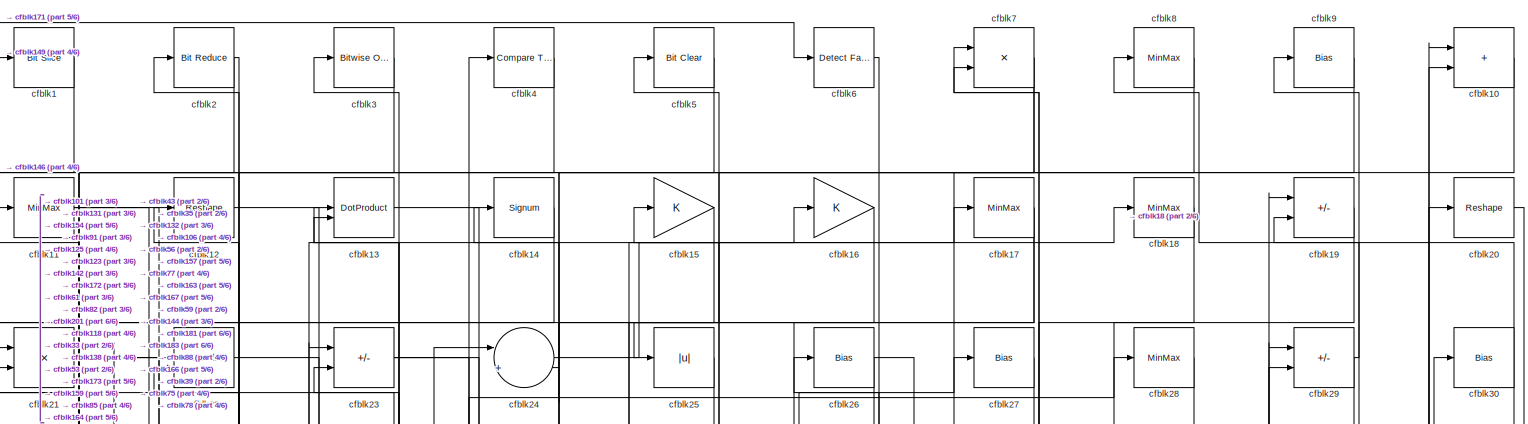
[diagram: root canvas - part 1/6, full width, top band]
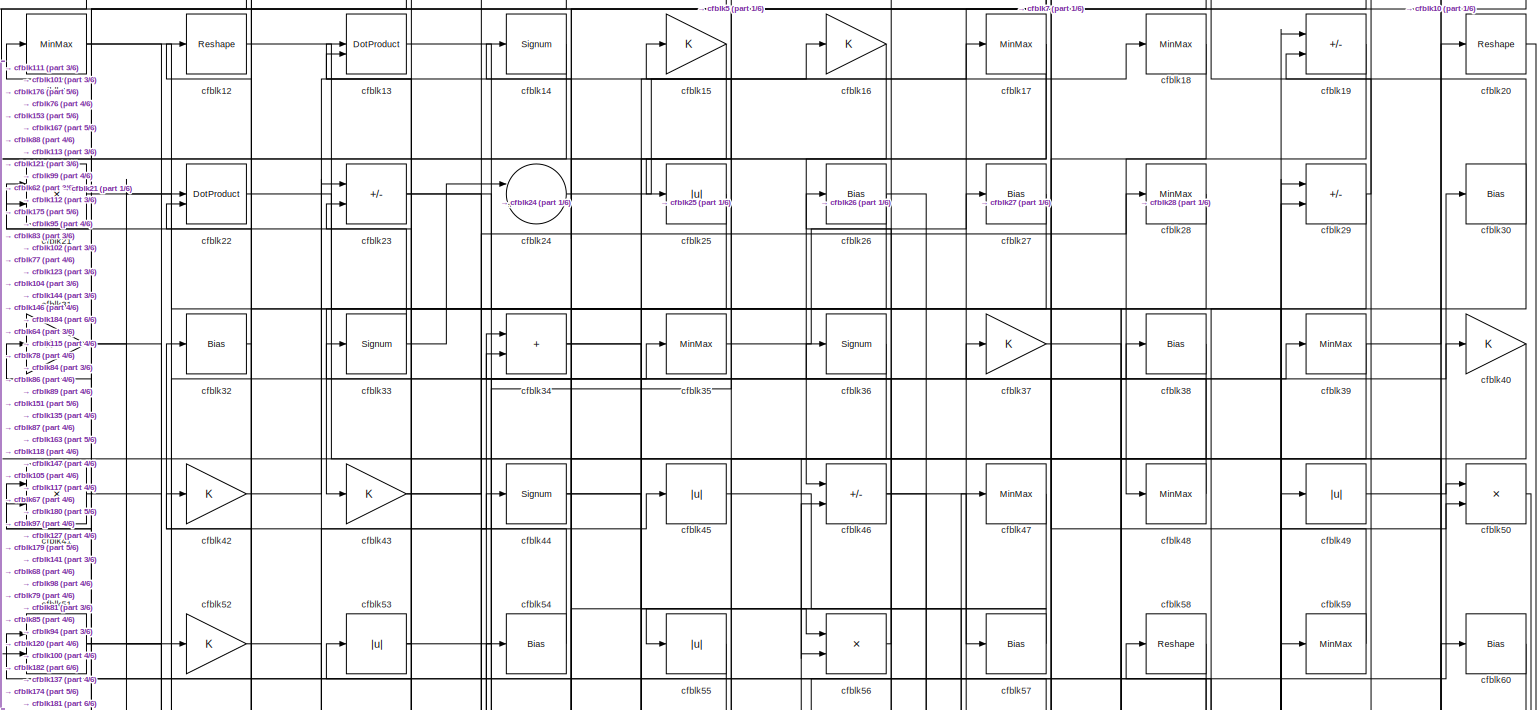
[diagram: root canvas - part 2/6, full width, top band]
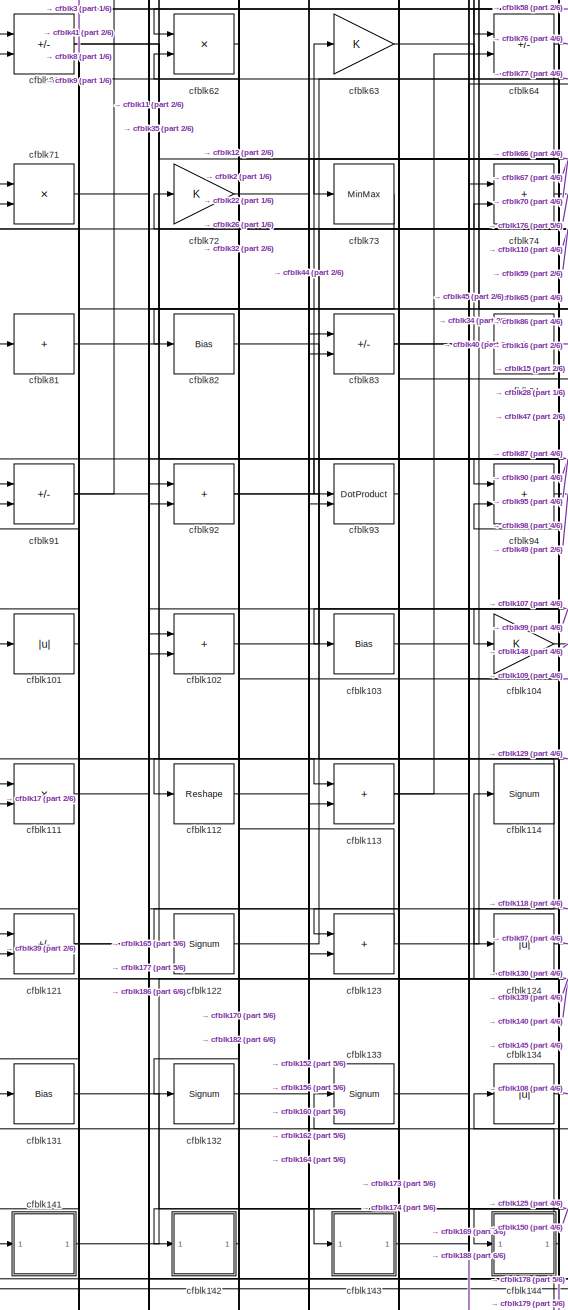
[diagram: root canvas - part 3/6, middle left region]
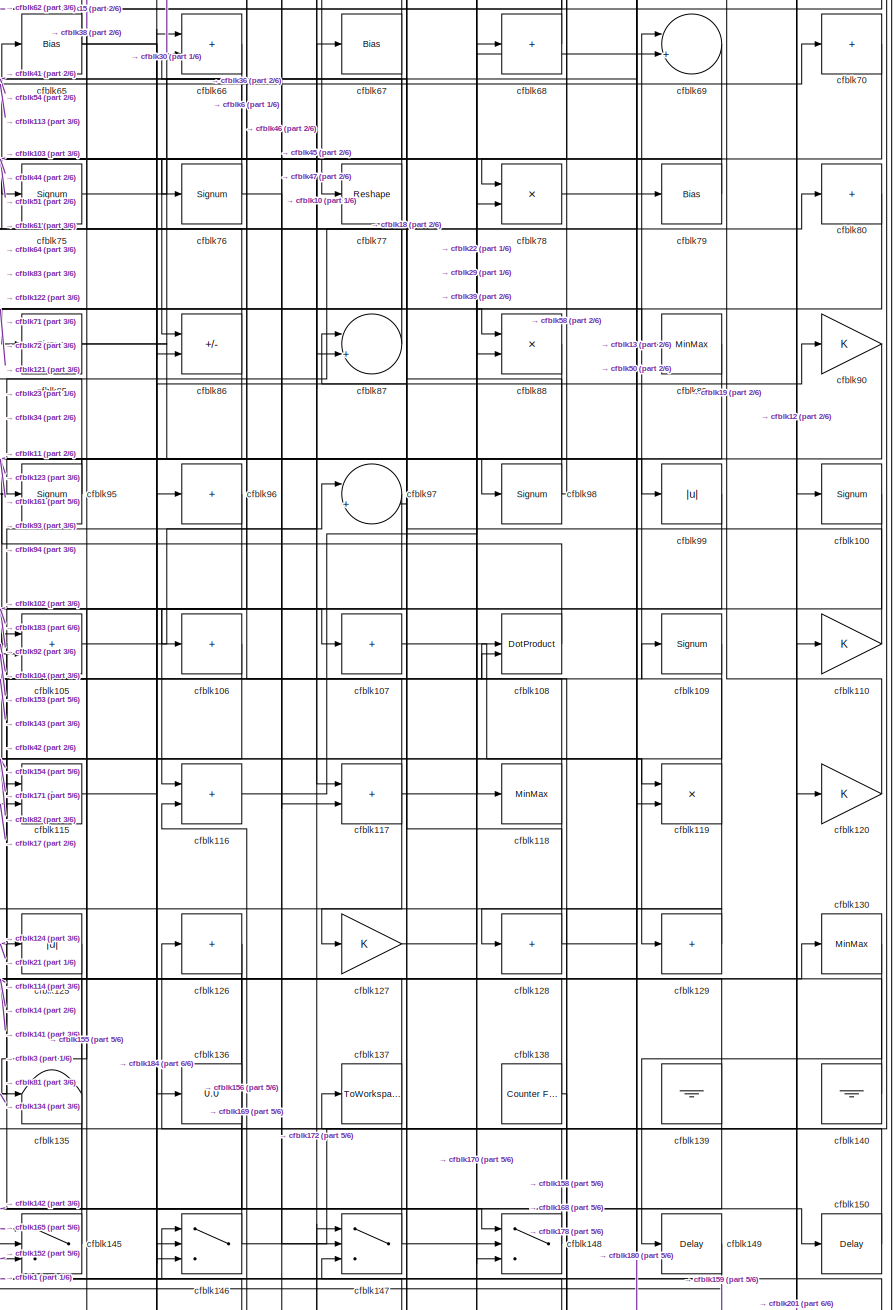
[diagram: root canvas - part 4/6, middle right region]
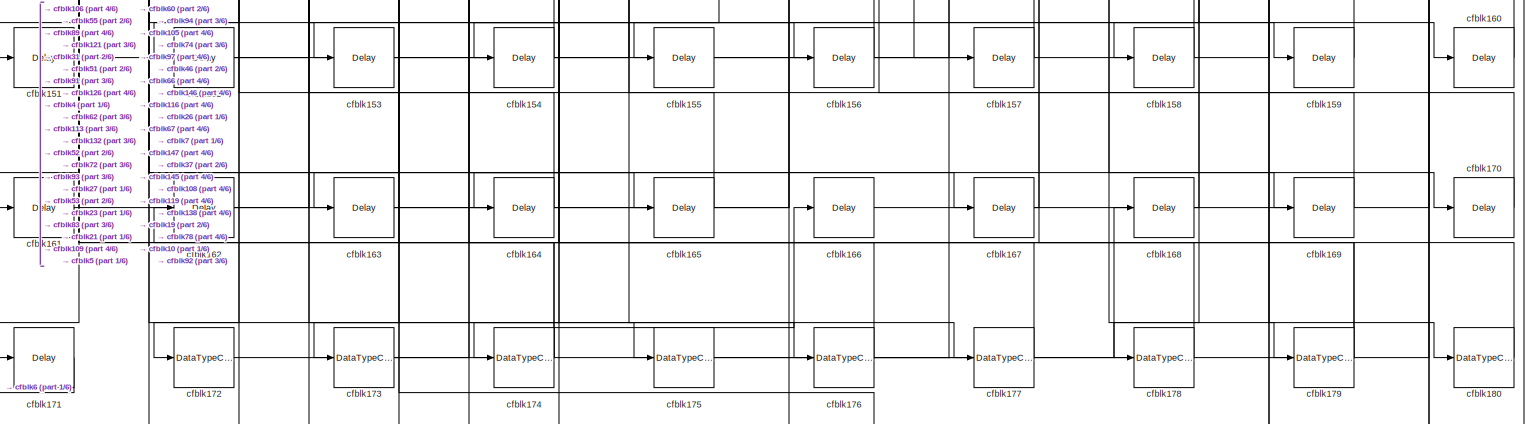
[diagram: root canvas - part 5/6, full width, bottom band]
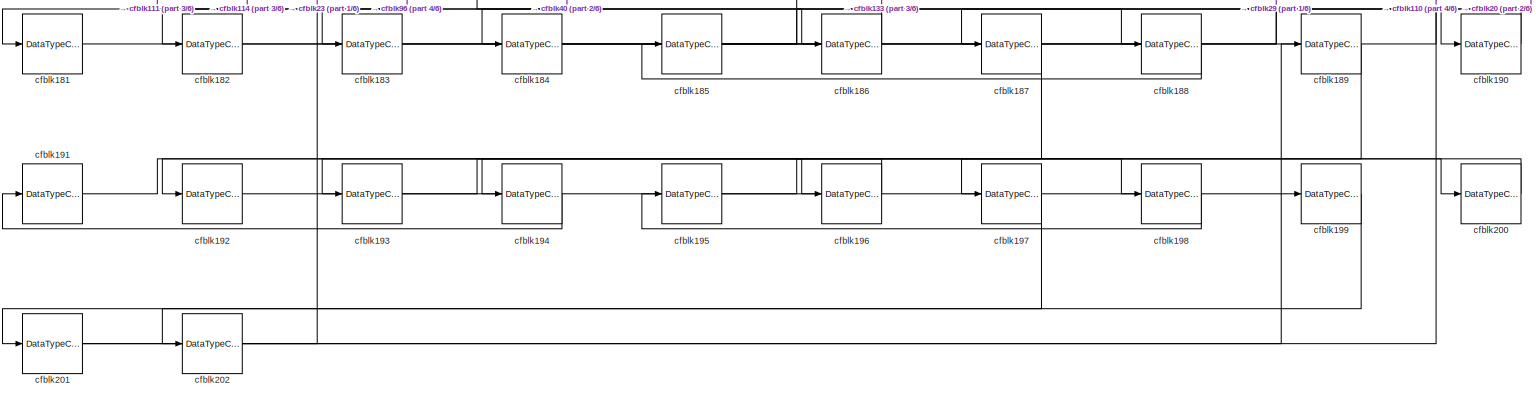
[diagram: root canvas - part 6/6, full width, bottom band]
MODEL slx_ca3c9b37318f
KIND model
CONFIG AbsTol = auto
CONFIG EnableMultiTasking = off
CONFIG FixedStep = auto
CONFIG MaxStep = auto
CONFIG MinStep = auto
CONFIG RelTol = 1e-3
CONFIG SampleTimeConstraint = Unconstrained
CONFIG SolverName = VariableStepAuto
CONFIG StartTime = 0.0
CONFIG StopTime = 10.0
BLOCK [Reference] cfblk1  REF=hdlsllib/Logic and Bit
Operations/Bit Slice
  SourceBlock = hdlsllib/Logic and Bit\nOperations/Bit Slice
  SourceType = Bit Slice
BLOCK [Sum] cfblk10
  IconShape = rectangular
BLOCK [Signum] cfblk100
BLOCK [Abs] cfblk101
  SaturateOnIntegerOverflow = off
BLOCK [Sum] cfblk102
  IconShape = rectangular
BLOCK [Bias] cfblk103
  Bias = 0.0
  SaturateOnIntegerOverflow = off
BLOCK [Gain] cfblk104
BLOCK [Sum] cfblk105
  IconShape = rectangular
BLOCK [Sum] cfblk106
  IconShape = rectangular
  Inputs = +
BLOCK [Sum] cfblk107
  IconShape = rectangular
  Inputs = +
BLOCK [DotProduct] cfblk108
  OutDataTypeStr = Inherit: Inherit via internal rule
BLOCK [Signum] cfblk109
BLOCK [MinMax] cfblk11
BLOCK [Gain] cfblk110
BLOCK [Product] cfblk111
  Inputs = */
  RndMeth = Zero
  SaturateOnIntegerOverflow = on
BLOCK [Reshape] cfblk112
BLOCK [Sum] cfblk113
  IconShape = rectangular
BLOCK [Signum] cfblk114
BLOCK [Sum] cfblk115
  IconShape = rectangular
BLOCK [Sum] cfblk116
  IconShape = rectangular
BLOCK [Sum] cfblk117
  IconShape = rectangular
BLOCK [MinMax] cfblk118
BLOCK [Product] cfblk119
  Inputs = */
  RndMeth = Zero
  SaturateOnIntegerOverflow = on
BLOCK [Reshape] cfblk12
BLOCK [Gain] cfblk120
BLOCK [Sum] cfblk121
  IconShape = rectangular
  Inputs = +-
BLOCK [Signum] cfblk122
BLOCK [Sum] cfblk123
  IconShape = rectangular
BLOCK [Abs] cfblk124
  SaturateOnIntegerOverflow = off
BLOCK [Abs] cfblk125
  SaturateOnIntegerOverflow = off
BLOCK [Sum] cfblk126
  IconShape = rectangular
  Inputs = +
BLOCK [Gain] cfblk127
BLOCK [Sum] cfblk128
  IconShape = rectangular
  Inputs = +
BLOCK [Sum] cfblk129
  IconShape = rectangular
  Inputs = +
BLOCK [DotProduct] cfblk13
  OutDataTypeStr = Inherit: Inherit via internal rule
BLOCK [MinMax] cfblk130
BLOCK [Bias] cfblk131
  Bias = 0.0
  SaturateOnIntegerOverflow = off
BLOCK [Signum] cfblk132
BLOCK [Signum] cfblk133
BLOCK [Abs] cfblk134
  SaturateOnIntegerOverflow = off
BLOCK [Terminator] cfblk135
BLOCK [Display] cfblk136
  Decimation = 1
BLOCK [ToWorkspace] cfblk137
  MaxDataPoints = inf
  SampleTime = -1
  SaveFormat = Timeseries
  VariableName = simout
BLOCK [Reference] cfblk138  REF=hdlsllib/Sources/Counter
Free-Running
  SourceBlock = hdlsllib/Sources/Counter\nFree-Running
  SourceType = Counter Free-Running
BLOCK [Ground] cfblk139
BLOCK [Signum] cfblk14
BLOCK [Ground] cfblk140
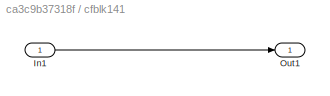
BLOCK [SubSystem] cfblk141
  LibrarySourceBlock = hdlsllib/Ports &\nSubsystems/Subsystem
BLOCK [Inport] cfblk141/In1
BLOCK [Outport] cfblk141/Out1
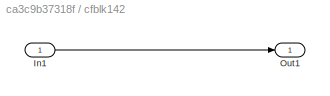
BLOCK [SubSystem] cfblk142
  LibrarySourceBlock = hdlsllib/Ports &\nSubsystems/Subsystem
BLOCK [Inport] cfblk142/In1
BLOCK [Outport] cfblk142/Out1
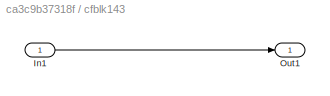
BLOCK [SubSystem] cfblk143
  LibrarySourceBlock = hdlsllib/Ports &\nSubsystems/Subsystem
BLOCK [Inport] cfblk143/In1
BLOCK [Outport] cfblk143/Out1
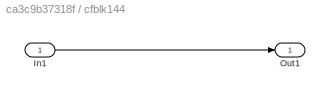
BLOCK [SubSystem] cfblk144
  LibrarySourceBlock = hdlsllib/Ports &\nSubsystems/Subsystem
BLOCK [Inport] cfblk144/In1
BLOCK [Outport] cfblk144/Out1
BLOCK [Switch] cfblk145
  InputSameDT = off
  SaturateOnIntegerOverflow = off
BLOCK [Switch] cfblk146
  InputSameDT = off
  SaturateOnIntegerOverflow = off
BLOCK [Switch] cfblk147
  InputSameDT = off
  SaturateOnIntegerOverflow = off
BLOCK [Switch] cfblk148
  InputSameDT = off
  SaturateOnIntegerOverflow = off
BLOCK [Delay] cfblk149
  InputPortMap = u0
  SampleTime = 1
BLOCK [Gain] cfblk15
BLOCK [Delay] cfblk150
  InputPortMap = u0
  SampleTime = 1
BLOCK [Delay] cfblk151
  InputPortMap = u0
  SampleTime = 1
BLOCK [Delay] cfblk152
  InputPortMap = u0
  SampleTime = 1
BLOCK [Delay] cfblk153
  InputPortMap = u0
  SampleTime = 1
BLOCK [Delay] cfblk154
  InputPortMap = u0
  SampleTime = 1
BLOCK [Delay] cfblk155
  InputPortMap = u0
  SampleTime = 1
BLOCK [Delay] cfblk156
  InputPortMap = u0
  SampleTime = 1
BLOCK [Delay] cfblk157
  InputPortMap = u0
  SampleTime = 1
BLOCK [Delay] cfblk158
  InputPortMap = u0
  SampleTime = 1
BLOCK [Delay] cfblk159
  InputPortMap = u0
  SampleTime = 1
BLOCK [Gain] cfblk16
BLOCK [Delay] cfblk160
  InputPortMap = u0
  SampleTime = 1
BLOCK [Delay] cfblk161
  InputPortMap = u0
  SampleTime = 1
BLOCK [Delay] cfblk162
  InputPortMap = u0
  SampleTime = 1
BLOCK [Delay] cfblk163
  InputPortMap = u0
  SampleTime = 1
BLOCK [Delay] cfblk164
  InputPortMap = u0
  SampleTime = 1
BLOCK [Delay] cfblk165
  InputPortMap = u0
  SampleTime = 1
BLOCK [Delay] cfblk166
  InputPortMap = u0
  SampleTime = 1
BLOCK [Delay] cfblk167
  InputPortMap = u0
  SampleTime = 1
BLOCK [Delay] cfblk168
  InputPortMap = u0
  SampleTime = 1
BLOCK [Delay] cfblk169
  InputPortMap = u0
  SampleTime = 1
BLOCK [MinMax] cfblk17
BLOCK [Delay] cfblk170
  InputPortMap = u0
  SampleTime = 1
BLOCK [Delay] cfblk171
  InputPortMap = u0
  SampleTime = 1
BLOCK [DataTypeConversion] cfblk172
  OutDataTypeStr = uint8
  RndMeth = Floor
  SaturateOnIntegerOverflow = off
BLOCK [DataTypeConversion] cfblk173
  OutDataTypeStr = uint8
  RndMeth = Floor
  SaturateOnIntegerOverflow = off
BLOCK [DataTypeConversion] cfblk174
  RndMeth = Floor
  SaturateOnIntegerOverflow = off
BLOCK [DataTypeConversion] cfblk175
  OutDataTypeStr = uint8
  RndMeth = Floor
  SaturateOnIntegerOverflow = off
BLOCK [DataTypeConversion] cfblk176
  RndMeth = Floor
  SaturateOnIntegerOverflow = off
BLOCK [DataTypeConversion] cfblk177
  OutDataTypeStr = uint8
  RndMeth = Floor
  SaturateOnIntegerOverflow = off
BLOCK [DataTypeConversion] cfblk178
  OutDataTypeStr = uint8
  RndMeth = Floor
  SaturateOnIntegerOverflow = off
BLOCK [DataTypeConversion] cfblk179
  RndMeth = Floor
  SaturateOnIntegerOverflow = off
BLOCK [MinMax] cfblk18
BLOCK [DataTypeConversion] cfblk180
  OutDataTypeStr = uint8
  RndMeth = Floor
  SaturateOnIntegerOverflow = off
BLOCK [DataTypeConversion] cfblk181
  OutDataTypeStr = uint8
  RndMeth = Floor
  SaturateOnIntegerOverflow = off
BLOCK [DataTypeConversion] cfblk182
  OutDataTypeStr = uint8
  RndMeth = Floor
  SaturateOnIntegerOverflow = off
BLOCK [DataTypeConversion] cfblk183
  OutDataTypeStr = uint8
  RndMeth = Floor
  SaturateOnIntegerOverflow = off
BLOCK [DataTypeConversion] cfblk184
  OutDataTypeStr = uint8
  RndMeth = Floor
  SaturateOnIntegerOverflow = off
BLOCK [DataTypeConversion] cfblk185
  RndMeth = Floor
  SaturateOnIntegerOverflow = off
BLOCK [DataTypeConversion] cfblk186
  OutDataTypeStr = uint8
  RndMeth = Floor
  SaturateOnIntegerOverflow = off
BLOCK [DataTypeConversion] cfblk187
  RndMeth = Floor
  SaturateOnIntegerOverflow = off
BLOCK [DataTypeConversion] cfblk188
  OutDataTypeStr = uint8
  RndMeth = Floor
  SaturateOnIntegerOverflow = off
BLOCK [DataTypeConversion] cfblk189
  RndMeth = Floor
  SaturateOnIntegerOverflow = off
BLOCK [Sum] cfblk19
  IconShape = rectangular
  Inputs = +-
BLOCK [DataTypeConversion] cfblk190
  OutDataTypeStr = uint8
  RndMeth = Floor
  SaturateOnIntegerOverflow = off
BLOCK [DataTypeConversion] cfblk191
  RndMeth = Floor
  SaturateOnIntegerOverflow = off
BLOCK [DataTypeConversion] cfblk192
  OutDataTypeStr = uint8
  RndMeth = Floor
  SaturateOnIntegerOverflow = off
BLOCK [DataTypeConversion] cfblk193
  RndMeth = Floor
  SaturateOnIntegerOverflow = off
BLOCK [DataTypeConversion] cfblk194
  OutDataTypeStr = uint8
  RndMeth = Floor
  SaturateOnIntegerOverflow = off
BLOCK [DataTypeConversion] cfblk195
  RndMeth = Floor
  SaturateOnIntegerOverflow = off
BLOCK [DataTypeConversion] cfblk196
  OutDataTypeStr = uint8
  RndMeth = Floor
  SaturateOnIntegerOverflow = off
BLOCK [DataTypeConversion] cfblk197
  RndMeth = Floor
  SaturateOnIntegerOverflow = off
BLOCK [DataTypeConversion] cfblk198
  OutDataTypeStr = uint8
  RndMeth = Floor
  SaturateOnIntegerOverflow = off
BLOCK [DataTypeConversion] cfblk199
  RndMeth = Floor
  SaturateOnIntegerOverflow = off
BLOCK [Reference] cfblk2  REF=hdlsllib/Logic and Bit
Operations/Bit Reduce
  SourceBlock = hdlsllib/Logic and Bit\nOperations/Bit Reduce
  SourceType = Bit Reduce
BLOCK [Reshape] cfblk20
BLOCK [DataTypeConversion] cfblk200
  OutDataTypeStr = uint8
  RndMeth = Floor
  SaturateOnIntegerOverflow = off
BLOCK [DataTypeConversion] cfblk201
  RndMeth = Floor
  SaturateOnIntegerOverflow = off
BLOCK [DataTypeConversion] cfblk202
  OutDataTypeStr = uint8
  RndMeth = Floor
  SaturateOnIntegerOverflow = off
BLOCK [Product] cfblk21
  Inputs = */
  RndMeth = Zero
  SaturateOnIntegerOverflow = on
BLOCK [DotProduct] cfblk22
  OutDataTypeStr = Inherit: Inherit via internal rule
BLOCK [Sum] cfblk23
  IconShape = rectangular
  Inputs = +-
BLOCK [Sum] cfblk24
  Inputs = |++
BLOCK [Abs] cfblk25
  SaturateOnIntegerOverflow = off
BLOCK [Bias] cfblk26
  Bias = 0.0
  SaturateOnIntegerOverflow = off
BLOCK [Bias] cfblk27
  Bias = 0.0
  SaturateOnIntegerOverflow = off
BLOCK [MinMax] cfblk28
BLOCK [Sum] cfblk29
  IconShape = rectangular
  Inputs = +-
BLOCK [Reference] cfblk3  REF=simulink/Logic and Bit
Operations/Bitwise
Operator
  LibrarySourceBlock = hdlsllib/Logic and Bit\nOperations/Bitwise\nOperator
  SourceBlock = simulink/Logic and Bit\nOperations/Bitwise\nOperator
  SourceType = Bitwise Operator
BLOCK [Bias] cfblk30
  Bias = 0.0
  SaturateOnIntegerOverflow = off
BLOCK [Gain] cfblk31
BLOCK [Bias] cfblk32
  Bias = 0.0
  SaturateOnIntegerOverflow = off
BLOCK [Signum] cfblk33
BLOCK [Sum] cfblk34
  IconShape = rectangular
BLOCK [MinMax] cfblk35
BLOCK [Signum] cfblk36
BLOCK [Gain] cfblk37
BLOCK [Bias] cfblk38
  Bias = 0.0
  SaturateOnIntegerOverflow = off
BLOCK [MinMax] cfblk39
BLOCK [Reference] cfblk4  REF=hdlsllib/Logic and Bit
Operations/Compare
To Constant
  SourceBlock = hdlsllib/Logic and Bit\nOperations/Compare\nTo Constant
  SourceType = Compare To Constant
BLOCK [Gain] cfblk40
BLOCK [Product] cfblk41
  Inputs = */
  RndMeth = Zero
  SaturateOnIntegerOverflow = on
BLOCK [Gain] cfblk42
BLOCK [Gain] cfblk43
BLOCK [Signum] cfblk44
BLOCK [Abs] cfblk45
  SaturateOnIntegerOverflow = off
BLOCK [Sum] cfblk46
  IconShape = rectangular
  Inputs = +-
BLOCK [MinMax] cfblk47
BLOCK [MinMax] cfblk48
BLOCK [Abs] cfblk49
  SaturateOnIntegerOverflow = off
BLOCK [Reference] cfblk5  REF=simulink/Logic and Bit
Operations/Bit Clear
  LibrarySourceBlock = hdlsllib/Logic and Bit\nOperations/Bit Clear
  SourceBlock = simulink/Logic and Bit\nOperations/Bit Clear
  SourceType = Bit Clear
BLOCK [Product] cfblk50
  Inputs = */
  RndMeth = Zero
  SaturateOnIntegerOverflow = on
BLOCK [Sum] cfblk51
  IconShape = rectangular
BLOCK [Gain] cfblk52
BLOCK [Abs] cfblk53
  SaturateOnIntegerOverflow = off
BLOCK [Bias] cfblk54
  Bias = 0.0
  SaturateOnIntegerOverflow = off
BLOCK [Abs] cfblk55
  SaturateOnIntegerOverflow = off
BLOCK [Product] cfblk56
  Inputs = */
  RndMeth = Zero
  SaturateOnIntegerOverflow = on
BLOCK [Bias] cfblk57
  Bias = 0.0
  SaturateOnIntegerOverflow = off
BLOCK [Reshape] cfblk58
BLOCK [MinMax] cfblk59
BLOCK [Reference] cfblk6  REF=hdlsllib/Logic and Bit
Operations/Detect Fall
Nonpositive
  SourceBlock = hdlsllib/Logic and Bit\nOperations/Detect Fall\nNonpositive
  SourceType = Detect Fall Nonpositive
BLOCK [Bias] cfblk60
  Bias = 0.0
  SaturateOnIntegerOverflow = off
BLOCK [Sum] cfblk61
  IconShape = rectangular
  Inputs = +-
BLOCK [Product] cfblk62
  Inputs = */
  RndMeth = Zero
  SaturateOnIntegerOverflow = on
BLOCK [Gain] cfblk63
BLOCK [Sum] cfblk64
  IconShape = rectangular
  Inputs = +-
BLOCK [Bias] cfblk65
  Bias = 0.0
  SaturateOnIntegerOverflow = off
BLOCK [Sum] cfblk66
  IconShape = rectangular
BLOCK [Bias] cfblk67
  Bias = 0.0
  SaturateOnIntegerOverflow = off
BLOCK [Sum] cfblk68
  IconShape = rectangular
  Inputs = +
BLOCK [Sum] cfblk69
  Inputs = |++
BLOCK [Product] cfblk7
  Inputs = */
  RndMeth = Zero
  SaturateOnIntegerOverflow = on
BLOCK [Sum] cfblk70
  IconShape = rectangular
  Inputs = +
BLOCK [Product] cfblk71
  Inputs = */
  RndMeth = Zero
  SaturateOnIntegerOverflow = on
BLOCK [Gain] cfblk72
BLOCK [MinMax] cfblk73
BLOCK [Sum] cfblk74
  IconShape = rectangular
BLOCK [Signum] cfblk75
BLOCK [Signum] cfblk76
BLOCK [Reshape] cfblk77
BLOCK [Product] cfblk78
  Inputs = */
  RndMeth = Zero
  SaturateOnIntegerOverflow = on
BLOCK [Bias] cfblk79
  Bias = 0.0
  SaturateOnIntegerOverflow = off
BLOCK [MinMax] cfblk8
BLOCK [Sum] cfblk80
  IconShape = rectangular
  Inputs = +
BLOCK [Sum] cfblk81
  IconShape = rectangular
  Inputs = +
BLOCK [Bias] cfblk82
  Bias = 0.0
  SaturateOnIntegerOverflow = off
BLOCK [Sum] cfblk83
  IconShape = rectangular
  Inputs = +-
BLOCK [Sum] cfblk84
  IconShape = rectangular
  Inputs = +
BLOCK [Signum] cfblk85
BLOCK [Sum] cfblk86
  IconShape = rectangular
  Inputs = +-
BLOCK [Sum] cfblk87
  Inputs = |++
BLOCK [Product] cfblk88
  Inputs = */
  RndMeth = Zero
  SaturateOnIntegerOverflow = on
BLOCK [MinMax] cfblk89
BLOCK [Bias] cfblk9
  Bias = 0.0
  SaturateOnIntegerOverflow = off
BLOCK [Gain] cfblk90
BLOCK [Sum] cfblk91
  IconShape = rectangular
  Inputs = +-
BLOCK [Sum] cfblk92
  IconShape = rectangular
BLOCK [DotProduct] cfblk93
  OutDataTypeStr = Inherit: Inherit via internal rule
BLOCK [Sum] cfblk94
  IconShape = rectangular
BLOCK [Signum] cfblk95
BLOCK [Sum] cfblk96
  IconShape = rectangular
  Inputs = +
BLOCK [Sum] cfblk97
  Inputs = |++
BLOCK [Signum] cfblk98
BLOCK [Abs] cfblk99
  SaturateOnIntegerOverflow = off
LINE cfblk100:1 -> cfblk116:1
LINE cfblk101:1 -> cfblk41:2
LINE cfblk102:1 -> cfblk34:1
LINE cfblk103:1 -> cfblk150:1
LINE cfblk104:1 -> cfblk148:1
LINE cfblk105:1 -> cfblk47:1
LINE cfblk106:1 -> cfblk171:1
LINE cfblk107:1 -> cfblk119:1
LINE cfblk108:1 -> cfblk95:1
LINE cfblk109:1 -> cfblk154:1
LINE cfblk10:1 -> cfblk77:1
LINE cfblk110:1 -> cfblk72:1
LINE cfblk111:1 -> cfblk186:1
LINE cfblk112:1 -> cfblk44:1
NET cfblk113:1 -> cfblk64:2, cfblk70:1
NET cfblk114:1 -> cfblk111:1, cfblk182:1
LINE cfblk115:1 -> cfblk90:1
LINE cfblk116:1 -> cfblk68:1
NET cfblk117:1 -> cfblk127:1, cfblk42:1, cfblk69:2
NET cfblk118:1 -> cfblk124:1, cfblk36:1
NET cfblk119:1 -> cfblk158:1, cfblk69:1
NET cfblk11:1 -> cfblk113:1, cfblk99:1
LINE cfblk120:1 -> cfblk19:2
NET cfblk121:1 -> cfblk177:1, cfblk35:1
LINE cfblk122:1 -> cfblk65:1
NET cfblk123:1 -> cfblk22:2, cfblk40:1
LINE cfblk124:1 -> cfblk97:1
LINE cfblk125:1 -> cfblk142:1
NET cfblk126:1 -> cfblk145:3, cfblk152:1
LINE cfblk127:1 -> cfblk39:1
NET cfblk128:1 -> cfblk80:1, cfblk87:1
LINE cfblk129:1 -> cfblk128:1
LINE cfblk12:1 -> cfblk100:1
LINE cfblk130:1 -> cfblk149:1
LINE cfblk131:1 -> cfblk143:1
LINE cfblk132:1 -> cfblk156:1
LINE cfblk133:1 -> cfblk188:1
LINE cfblk134:1 -> cfblk108:1
NET cfblk138:1 -> cfblk178:1, cfblk3:1
NET cfblk139:1 -> cfblk146:3, cfblk71:1
LINE cfblk13:1 -> cfblk79:1
LINE cfblk140:1 -> cfblk114:1
LINE cfblk141/In1:1 -> cfblk141/Out1:1
LINE cfblk141:1 -> cfblk130:1
LINE cfblk142/In1:1 -> cfblk142/Out1:1
LINE cfblk142:1 -> cfblk2:1
LINE cfblk143/In1:1 -> cfblk143/Out1:1
LINE cfblk143:1 -> cfblk109:1
LINE cfblk144/In1:1 -> cfblk144/Out1:1
NET cfblk144:1 -> cfblk134:1, cfblk34:2
LINE cfblk145:1 -> cfblk81:1
NET cfblk146:1 -> cfblk120:1, cfblk14:1
NET cfblk147:1 -> cfblk105:1, cfblk170:1
LINE cfblk148:1 -> cfblk126:1
LINE cfblk149:1 -> cfblk1:1
LINE cfblk14:1 -> cfblk51:2
LINE cfblk150:1 -> cfblk61:1
LINE cfblk151:1 -> cfblk19:1
LINE cfblk152:1 -> cfblk113:2
LINE cfblk153:1 -> cfblk105:2
LINE cfblk154:1 -> cfblk21:2
LINE cfblk155:1 -> cfblk147:1
LINE cfblk156:1 -> cfblk146:2
LINE cfblk157:1 -> cfblk23:2
LINE cfblk158:1 -> cfblk145:2
LINE cfblk159:1 -> cfblk147:3
LINE cfblk15:1 -> cfblk64:1
LINE cfblk160:1 -> cfblk92:1
LINE cfblk161:1 -> cfblk66:1
LINE cfblk162:1 -> cfblk93:2
LINE cfblk163:1 -> cfblk46:2
LINE cfblk164:1 -> cfblk83:1
LINE cfblk165:1 -> cfblk145:1
LINE cfblk166:1 -> cfblk10:2
LINE cfblk167:1 -> cfblk7:2
LINE cfblk168:1 -> cfblk108:2
LINE cfblk169:1 -> cfblk116:2
LINE cfblk16:1 -> cfblk46:1
LINE cfblk170:1 -> cfblk62:2
LINE cfblk171:1 -> cfblk6:1
LINE cfblk172:1 -> cfblk67:1
LINE cfblk173:1 -> cfblk4:1
NET cfblk174:1 -> cfblk166:1, cfblk53:1, cfblk91:2
LINE cfblk175:1 -> cfblk60:1
NET cfblk176:1 -> cfblk168:1, cfblk31:1
LINE cfblk177:1 -> cfblk74:1
LINE cfblk178:1 -> cfblk74:2
NET cfblk179:1 -> cfblk162:1, cfblk94:2
NET cfblk17:1 -> cfblk111:2, cfblk115:2
LINE cfblk180:1 -> cfblk37:1
LINE cfblk181:1 -> cfblk29:2
LINE cfblk182:1 -> cfblk20:1
LINE cfblk183:1 -> cfblk29:1
LINE cfblk184:1 -> cfblk96:1
LINE cfblk185:1 -> cfblk190:1
LINE cfblk186:1 -> cfblk133:1
LINE cfblk187:1 -> cfblk192:1
LINE cfblk188:1 -> cfblk185:1
LINE cfblk189:1 -> cfblk194:1
LINE cfblk18:1 -> cfblk97:2
LINE cfblk190:1 -> cfblk187:1
LINE cfblk191:1 -> cfblk196:1
LINE cfblk192:1 -> cfblk189:1
LINE cfblk193:1 -> cfblk198:1
LINE cfblk194:1 -> cfblk191:1
LINE cfblk195:1 -> cfblk200:1
LINE cfblk196:1 -> cfblk193:1
LINE cfblk197:1 -> cfblk202:1
LINE cfblk198:1 -> cfblk195:1
LINE cfblk199:1 -> cfblk201:1
LINE cfblk19:1 -> cfblk48:1
LINE cfblk1:1 -> cfblk146:1
LINE cfblk200:1 -> cfblk197:1
NET cfblk201:1 -> cfblk110:1, cfblk23:1
LINE cfblk202:1 -> cfblk199:1
LINE cfblk20:1 -> cfblk181:1
LINE cfblk21:1 -> cfblk125:1
LINE cfblk22:1 -> cfblk118:1
NET cfblk23:1 -> cfblk159:1, cfblk85:1
LINE cfblk24:1 -> cfblk18:1
LINE cfblk25:1 -> cfblk43:1
NET cfblk26:1 -> cfblk132:1, cfblk157:1
LINE cfblk27:1 -> cfblk163:1
LINE cfblk28:1 -> cfblk144:1
NET cfblk29:1 -> cfblk88:2, cfblk9:1
NET cfblk2:1 -> cfblk61:2, cfblk82:1
NET cfblk30:1 -> cfblk78:1, cfblk8:1
NET cfblk31:1 -> cfblk167:1, cfblk52:1
LINE cfblk32:1 -> cfblk112:1
NET cfblk33:1 -> cfblk21:1, cfblk24:1
NET cfblk34:1 -> cfblk56:1, cfblk86:2
LINE cfblk35:1 -> cfblk27:1
LINE cfblk36:1 -> cfblk56:2
LINE cfblk37:1 -> cfblk179:1
LINE cfblk38:1 -> cfblk135:1
NET cfblk39:1 -> cfblk10:1, cfblk121:2
LINE cfblk3:1 -> cfblk101:1
LINE cfblk40:1 -> cfblk184:1
LINE cfblk41:1 -> cfblk102:1
LINE cfblk42:1 -> cfblk17:1
NET cfblk43:1 -> cfblk28:1, cfblk38:1
NET cfblk44:1 -> cfblk78:2, cfblk89:1
LINE cfblk45:1 -> cfblk117:1
NET cfblk46:1 -> cfblk147:2, cfblk57:1
LINE cfblk47:1 -> cfblk104:1
LINE cfblk48:1 -> cfblk33:1
LINE cfblk49:1 -> cfblk50:1
LINE cfblk4:1 -> cfblk172:1
LINE cfblk50:1 -> cfblk137:1
NET cfblk51:1 -> cfblk153:1, cfblk88:1
LINE cfblk52:1 -> cfblk175:1
NET cfblk53:1 -> cfblk13:1, cfblk5:1
LINE cfblk54:1 -> cfblk32:1
LINE cfblk55:1 -> cfblk151:1
LINE cfblk56:1 -> cfblk26:1
LINE cfblk57:1 -> cfblk55:1
LINE cfblk58:1 -> cfblk141:1
LINE cfblk59:1 -> cfblk7:1
LINE cfblk5:1 -> cfblk164:1
LINE cfblk60:1 -> cfblk174:1
NET cfblk61:1 -> cfblk87:2, cfblk98:1
LINE cfblk62:1 -> cfblk12:1
LINE cfblk63:1 -> cfblk84:1
NET cfblk64:1 -> cfblk73:1, cfblk76:1
NET cfblk65:1 -> cfblk136:1, cfblk148:3, cfblk62:1
LINE cfblk66:1 -> cfblk122:1
NET cfblk67:1 -> cfblk51:1, cfblk83:2
LINE cfblk68:1 -> cfblk11:1
LINE cfblk69:1 -> cfblk86:1
LINE cfblk6:1 -> cfblk106:1
LINE cfblk70:1 -> cfblk103:1
LINE cfblk71:1 -> cfblk123:2
LINE cfblk72:1 -> cfblk160:1
LINE cfblk73:1 -> cfblk92:2
LINE cfblk74:1 -> cfblk176:1
LINE cfblk75:1 -> cfblk30:1
NET cfblk76:1 -> cfblk117:2, cfblk41:1
NET cfblk77:1 -> cfblk121:1, cfblk54:1
LINE cfblk78:1 -> cfblk180:1
LINE cfblk79:1 -> cfblk75:1
NET cfblk7:1 -> cfblk24:2, cfblk25:1
LINE cfblk80:1 -> cfblk148:2
LINE cfblk81:1 -> cfblk59:1
LINE cfblk82:1 -> cfblk129:1
NET cfblk83:1 -> cfblk169:1, cfblk45:1
LINE cfblk84:1 -> cfblk16:1
NET cfblk85:1 -> cfblk119:2, cfblk50:2
NET cfblk86:1 -> cfblk123:1, cfblk71:2
LINE cfblk87:1 -> cfblk15:1
LINE cfblk88:1 -> cfblk115:1
LINE cfblk89:1 -> cfblk161:1
LINE cfblk8:1 -> cfblk91:1
LINE cfblk90:1 -> cfblk94:1
NET cfblk91:1 -> cfblk165:1, cfblk22:1
NET cfblk92:1 -> cfblk107:1, cfblk63:1
LINE cfblk93:1 -> cfblk173:1
LINE cfblk94:1 -> cfblk49:1
NET cfblk95:1 -> cfblk13:2, cfblk93:1
LINE cfblk96:1 -> cfblk183:1
LINE cfblk97:1 -> cfblk155:1
NET cfblk98:1 -> cfblk58:1, cfblk66:2
LINE cfblk99:1 -> cfblk102:2
LINE cfblk9:1 -> cfblk131:1
note: NET lines group one-source signal fan-out (src -> all destinations, sorted); 1:1 wires keep LINE
